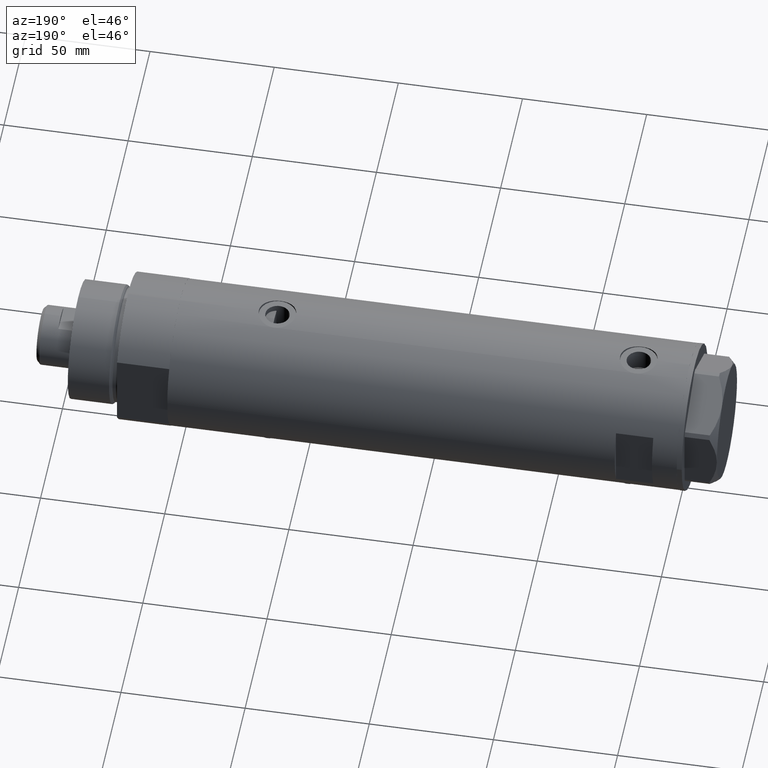
[diagram: clean part render]
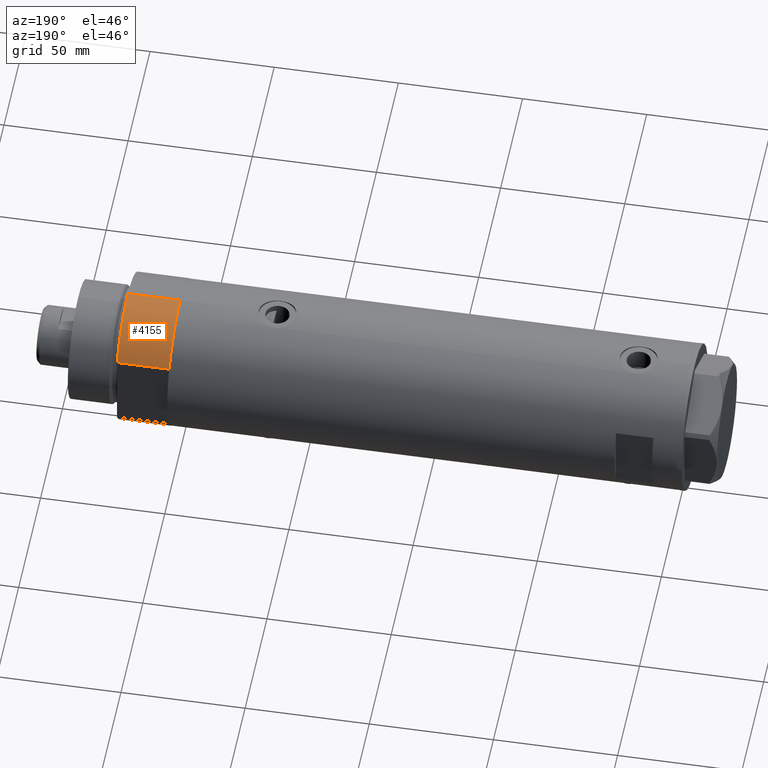
[diagram: same view with one face highlighted and labeled with its STEP entity id]
A machine part, auxiliary view. The second image highlights one B-rep face of the part: STEP entity #4155.
In plain terms, the highlighted cylindrical surface (partial cylindrical patch) has radius 29.5 mm, axis along (-1, -0, 0).
Its self-contained STEP definition (entity closure, byte-faithful):
#46 = DIRECTION ( 'NONE',  ( -0.000000000000000000, -0.000000000000000000, -1.000000000000000000 ) ) ;
#120 = LINE ( 'NONE', #3859, #4068 ) ;
#187 = DIRECTION ( 'NONE',  ( 1.000000000000000000, 0.000000000000000000, 0.000000000000000000 ) ) ;
#425 = ORIENTED_EDGE ( 'NONE', *, *, #3426, .F. ) ;
#496 = VERTEX_POINT ( 'NONE', #2356 ) ;
#567 = ORIENTED_EDGE ( 'NONE', *, *, #1216, .T. ) ;
#783 = DIRECTION ( 'NONE',  ( -0.000000000000000000, -0.000000000000000000, -1.000000000000000000 ) ) ;
#818 = VECTOR ( 'NONE', #878, 1000.000000000000000 ) ;
#878 = DIRECTION ( 'NONE',  ( -0.000000000000000000, -0.000000000000000000, 1.000000000000000000 ) ) ;
#885 = DIRECTION ( 'NONE',  ( 0.000000000000000000, 0.000000000000000000, 1.000000000000000000 ) ) ;
#915 = DIRECTION ( 'NONE',  ( 0.000000000000000000, 0.000000000000000000, 1.000000000000000000 ) ) ;
#936 = EDGE_LOOP ( 'NONE', ( #1154, #425, #1123, #567 ) ) ;
#1123 = ORIENTED_EDGE ( 'NONE', *, *, #2408, .F. ) ;
#1154 = ORIENTED_EDGE ( 'NONE', *, *, #4009, .F. ) ;
#1187 = CARTESIAN_POINT ( 'NONE',  ( -15.66045976336583045, 24.99999999999999645, 21.00000000000000355 ) ) ;
#1190 = CIRCLE ( 'NONE', #2832, 29.50000000000000355 ) ;
#1216 = EDGE_CURVE ( 'NONE', #496, #1327, #3692, .T. ) ;
#1327 = VERTEX_POINT ( 'NONE', #3040 ) ;
#1531 = LINE ( 'NONE', #2896, #818 ) ;
#1957 = VERTEX_POINT ( 'NONE', #1187 ) ;
#2151 = DIRECTION ( 'NONE',  ( -1.000000000000000000, 0.000000000000000000, 0.000000000000000000 ) ) ;
#2251 = AXIS2_PLACEMENT_3D ( 'NONE', #2643, #915, #3323 ) ;
#2356 = CARTESIAN_POINT ( 'NONE',  ( -15.66045976336583401, 25.00000000000000000, 0.000000000000000000 ) ) ;
#2408 = EDGE_CURVE ( 'NONE', #496, #1957, #1531, .T. ) ;
#2414 = CARTESIAN_POINT ( 'NONE',  ( 0.000000000000000000, 0.000000000000000000, 21.00000000000000000 ) ) ;
#2484 = CYLINDRICAL_SURFACE ( 'NONE', #4070, 29.50000000000000355 ) ;
#2578 = CARTESIAN_POINT ( 'NONE',  ( -29.50000000000000355, 0.000000000000000000, 21.00000000000000000 ) ) ;
#2643 = CARTESIAN_POINT ( 'NONE',  ( 0.000000000000000000, 0.000000000000000000, 0.000000000000000000 ) ) ;
#2832 = AXIS2_PLACEMENT_3D ( 'NONE', #3021, #885, #187 ) ;
#2869 = VERTEX_POINT ( 'NONE', #2578 ) ;
#2896 = CARTESIAN_POINT ( 'NONE',  ( -15.66045976336583401, 25.00000000000000000, 0.000000000000000000 ) ) ;
#3021 = CARTESIAN_POINT ( 'NONE',  ( 0.000000000000000000, 0.000000000000000000, 21.00000000000000000 ) ) ;
#3040 = CARTESIAN_POINT ( 'NONE',  ( -29.50000000000000355, 0.000000000000000000, 0.000000000000000000 ) ) ;
#3323 = DIRECTION ( 'NONE',  ( 1.000000000000000000, 0.000000000000000000, 0.000000000000000000 ) ) ;
#3426 = EDGE_CURVE ( 'NONE', #1957, #2869, #1190, .T. ) ;
#3692 = CIRCLE ( 'NONE', #2251, 29.50000000000000355 ) ;
#3821 = FACE_OUTER_BOUND ( 'NONE', #936, .T. ) ;
#3859 = CARTESIAN_POINT ( 'NONE',  ( -29.50000000000000355, 0.000000000000000000, 21.00000000000000000 ) ) ;
#4009 = EDGE_CURVE ( 'NONE', #2869, #1327, #120, .T. ) ;
#4068 = VECTOR ( 'NONE', #46, 1000.000000000000000 ) ;
#4070 = AXIS2_PLACEMENT_3D ( 'NONE', #2414, #783, #2151 ) ;
#4155 = ADVANCED_FACE ( 'NONE', ( #3821 ), #2484, .T. ) ;